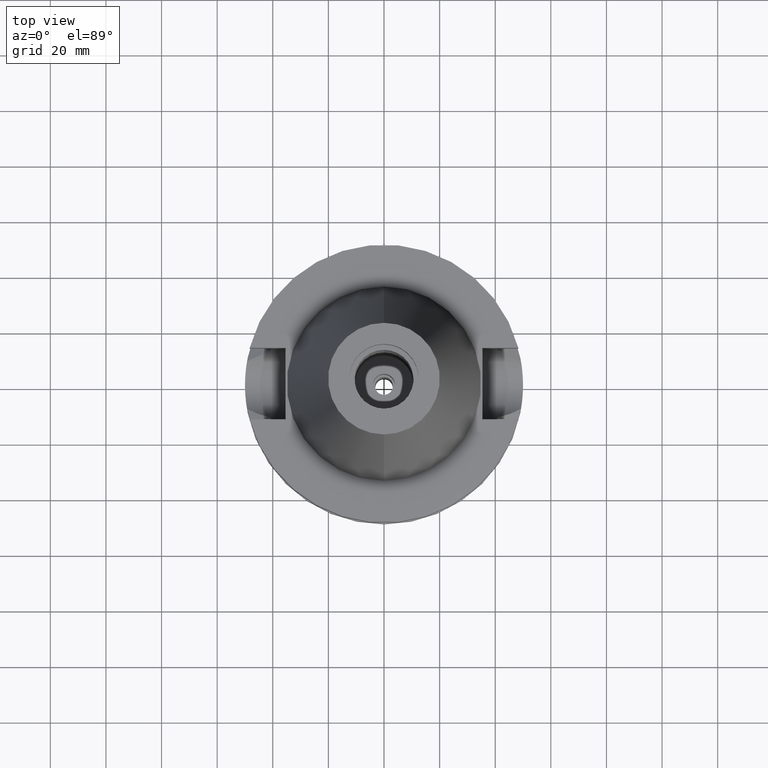
[diagram: clean part render]
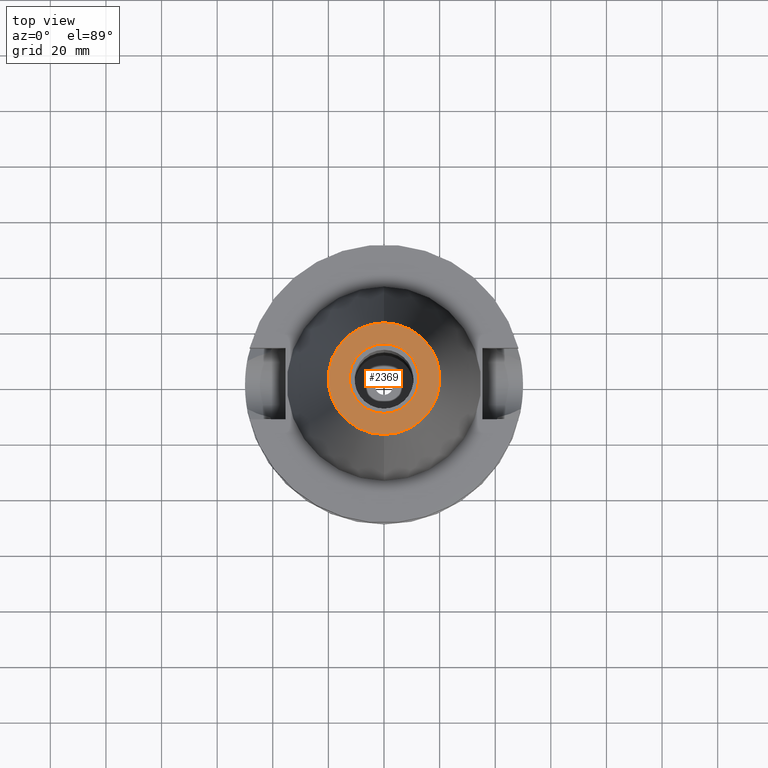
[diagram: same view with one face highlighted and labeled with its STEP entity id]
A machine part, top view. The second image highlights one B-rep face of the part: STEP entity #2369.
In plain terms, the highlighted planar face has unit normal (0, 0, -1).
Its self-contained STEP definition (entity closure, byte-faithful):
#16 = CIRCLE ( 'NONE', #1245, 12.50000000000000000 ) ;
#34 = DIRECTION ( 'NONE',  ( 0.0000000000000000000, 0.0000000000000000000, -1.000000000000000000 ) ) ;
#183 = DIRECTION ( 'NONE',  ( 0.0000000000000000000, 1.000000000000000000, 0.0000000000000000000 ) ) ;
#217 = EDGE_CURVE ( 'NONE', #2474, #2380, #1824, .T. ) ;
#436 = CARTESIAN_POINT ( 'NONE',  ( 0.0000000000000000000, 2.602251983507999750E-14, 101.7999999999999972 ) ) ;
#450 = DIRECTION ( 'NONE',  ( 0.0000000000000000000, -1.000000000000000000, 0.0000000000000000000 ) ) ;
#549 = EDGE_LOOP ( 'NONE', ( #1509, #2492 ) ) ;
#631 = EDGE_LOOP ( 'NONE', ( #886, #1263 ) ) ;
#657 = FACE_BOUND ( 'NONE', #549, .T. ) ;
#805 = VERTEX_POINT ( 'NONE', #2174 ) ;
#819 = AXIS2_PLACEMENT_3D ( 'NONE', #436, #3105, #183 ) ;
#886 = ORIENTED_EDGE ( 'NONE', *, *, #2172, .F. ) ;
#986 = AXIS2_PLACEMENT_3D ( 'NONE', #1338, #2801, #1560 ) ;
#1005 = DIRECTION ( 'NONE',  ( 0.0000000000000000000, -1.000000000000000000, 0.0000000000000000000 ) ) ;
#1059 = VERTEX_POINT ( 'NONE', #1589 ) ;
#1188 = DIRECTION ( 'NONE',  ( 0.0000000000000000000, -1.000000000000000000, 0.0000000000000000000 ) ) ;
#1245 = AXIS2_PLACEMENT_3D ( 'NONE', #1876, #2356, #1188 ) ;
#1263 = ORIENTED_EDGE ( 'NONE', *, *, #2590, .F. ) ;
#1338 = CARTESIAN_POINT ( 'NONE',  ( 0.0000000000000000000, 1.847992019912999597E-14, 101.7999999999999972 ) ) ;
#1435 = CARTESIAN_POINT ( 'NONE',  ( 0.0000000000000000000, 12.50000000000000000, 101.7999999999999972 ) ) ;
#1509 = ORIENTED_EDGE ( 'NONE', *, *, #217, .F. ) ;
#1549 = CIRCLE ( 'NONE', #986, 20.07942971896000017 ) ;
#1554 = AXIS2_PLACEMENT_3D ( 'NONE', #1916, #34, #1005 ) ;
#1560 = DIRECTION ( 'NONE',  ( 0.0000000000000000000, 1.000000000000000000, 0.0000000000000000000 ) ) ;
#1589 = CARTESIAN_POINT ( 'NONE',  ( 0.0000000000000000000, 20.07942971896000017, 101.7999999999999972 ) ) ;
#1603 = CARTESIAN_POINT ( 'NONE',  ( 0.0000000000000000000, -12.50000000000000000, 101.7999999999999972 ) ) ;
#1652 = CIRCLE ( 'NONE', #1554, 20.07942971896000017 ) ;
#1660 = FACE_OUTER_BOUND ( 'NONE', #631, .T. ) ;
#1689 = AXIS2_PLACEMENT_3D ( 'NONE', #2107, #2584, #450 ) ;
#1824 = CIRCLE ( 'NONE', #819, 12.50000000000000000 ) ;
#1876 = CARTESIAN_POINT ( 'NONE',  ( 0.0000000000000000000, 2.602251983507999750E-14, 101.7999999999999972 ) ) ;
#1916 = CARTESIAN_POINT ( 'NONE',  ( 0.0000000000000000000, 1.847992019912999597E-14, 101.7999999999999972 ) ) ;
#2107 = CARTESIAN_POINT ( 'NONE',  ( 0.0000000000000000000, 2.471337240678999545E-14, 101.7999999999999972 ) ) ;
#2172 = EDGE_CURVE ( 'NONE', #1059, #805, #1549, .T. ) ;
#2174 = CARTESIAN_POINT ( 'NONE',  ( 0.0000000000000000000, -20.07942971896000017, 101.7999999999999972 ) ) ;
#2356 = DIRECTION ( 'NONE',  ( 0.0000000000000000000, 0.0000000000000000000, 1.000000000000000000 ) ) ;
#2358 = EDGE_CURVE ( 'NONE', #2380, #2474, #16, .T. ) ;
#2369 = ADVANCED_FACE ( 'NONE', ( #1660, #657 ), #2642, .F. ) ;
#2380 = VERTEX_POINT ( 'NONE', #1603 ) ;
#2474 = VERTEX_POINT ( 'NONE', #1435 ) ;
#2492 = ORIENTED_EDGE ( 'NONE', *, *, #2358, .F. ) ;
#2584 = DIRECTION ( 'NONE',  ( 0.0000000000000000000, 0.0000000000000000000, -1.000000000000000000 ) ) ;
#2590 = EDGE_CURVE ( 'NONE', #805, #1059, #1652, .T. ) ;
#2642 = PLANE ( 'NONE',  #1689 ) ;
#2801 = DIRECTION ( 'NONE',  ( 0.0000000000000000000, 0.0000000000000000000, -1.000000000000000000 ) ) ;
#3105 = DIRECTION ( 'NONE',  ( 0.0000000000000000000, 0.0000000000000000000, 1.000000000000000000 ) ) ;